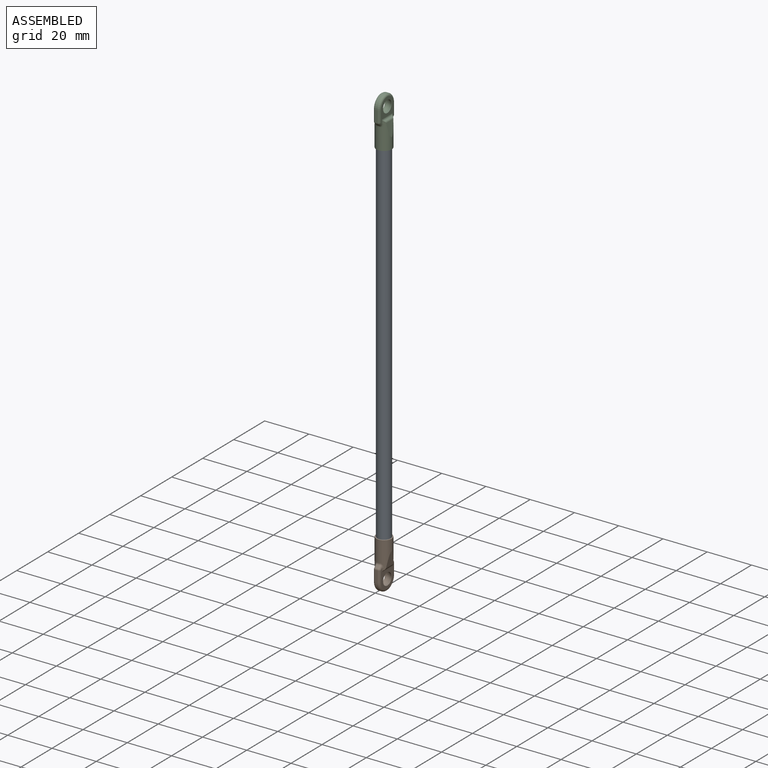
[diagram: assembled view]
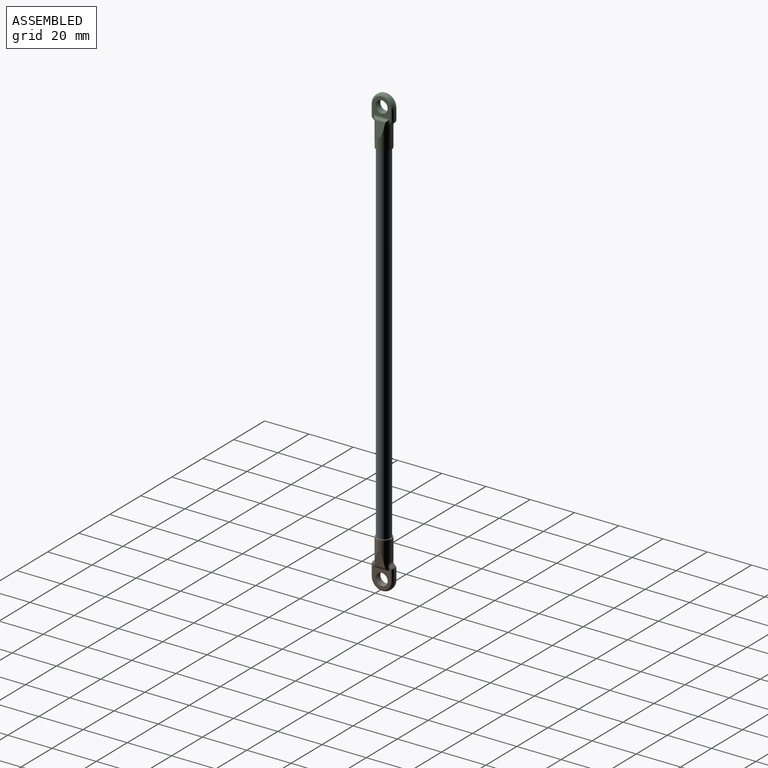
[diagram: assembled view, second angle]
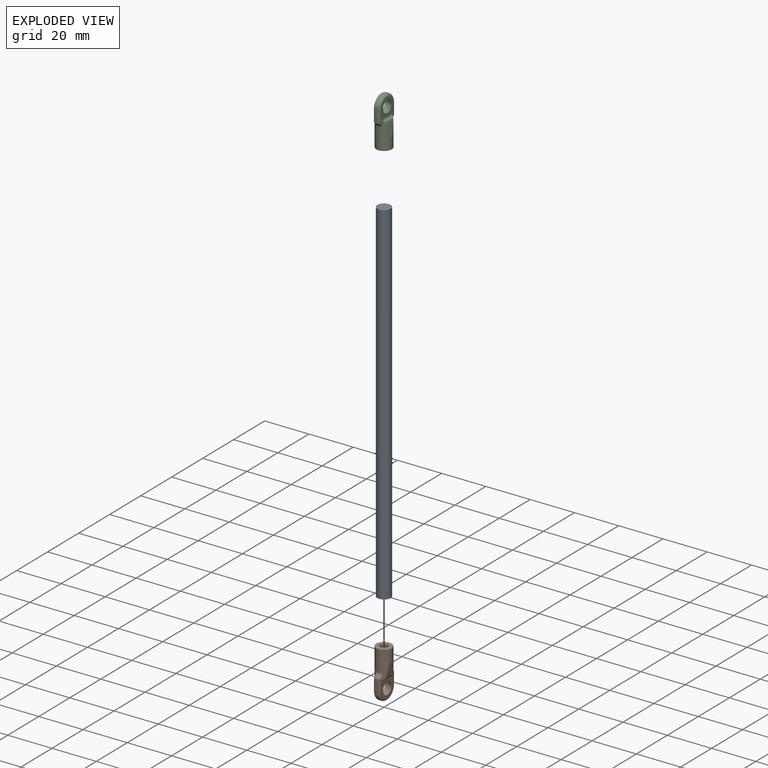
[diagram: exploded view]
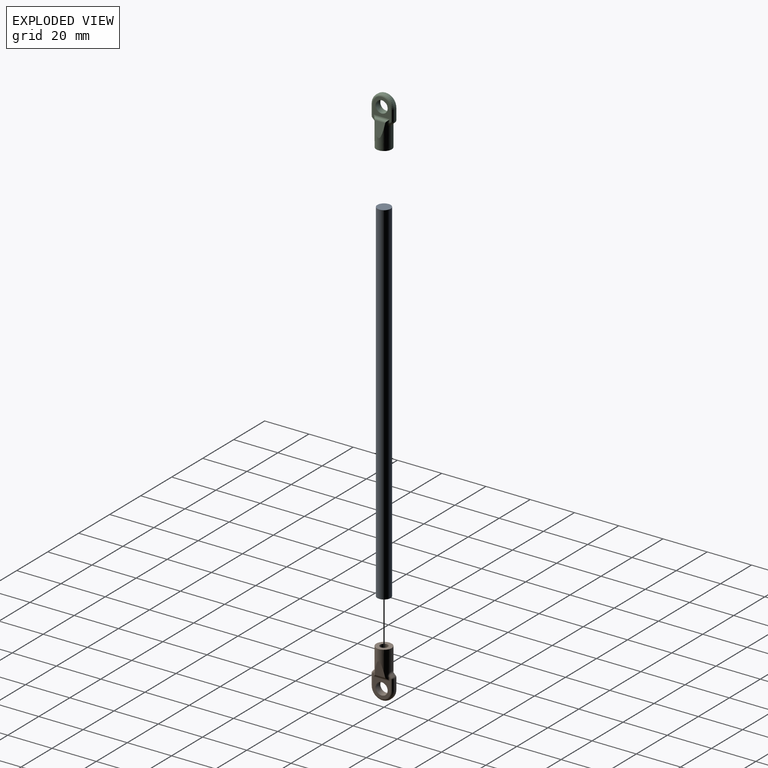
[diagram: exploded view, second angle]
ASSEMBLY  parts=3 mates=2
PART A: 3 faces, bbox 6x6x159 mm
  f0: cylinder r=3mm len=159mm, axis (0,0,-1), area 2997.1mm2, adj f1,f2
  f1: plane 6x6mm, normal (0,0,1), area 28.3mm2, adj f0
  f2: plane 6x6mm, normal (0,0,-1), area 28.3mm2, adj f0
PART B: 46 faces, bbox 12.5x22.3x10.8 mm
  f0: cylinder r=2.7mm len=5.4mm, axis (-0.93,-0.37,0), area 3.3mm2, adj f9,f15
  f1: cylinder r=2.7mm len=5.4mm, axis (-0.93,-0.37,0), area 3.3mm2, adj f8,f15
  f2: cylinder r=3.5mm len=13.89mm, axis (0.37,-0.93,0), area 195.8mm2, adj f10,f13,f14,f16,f17,f18,f19,f22
  f3: plane 5.1x2.79mm, normal (0,0,-1), area 5.1mm2, adj f4,f21,f30,f38
  f4: cylinder r=5mm len=10mm, axis (-0.93,-0.37,0), area 15.7mm2, adj f3,f5,f26,f41
  f5: plane 5.1x2.79mm, normal (0,0,1), area 5.1mm2, adj f4,f31,f39,f43
  f6: plane 1.28x1.24mm, normal (0.26,-0.66,0.71), area 1.3mm2, adj f32,f33,f39,f40
  f7: plane 1.28x1.24mm, normal (0.26,-0.66,-0.71), area 1.3mm2, adj f19,f20,f29,f30
  f8: plane 8.69x8mm, normal (0.93,0.37,0), area 34.9mm2, adj f1,f16,f18,f20,f21,f22,f26,f31
  f9: plane 8.69x8mm, normal (-0.93,-0.37,0), area 34.9mm2, adj f0,f23,f28,f29,f34,f38,f40,f41
  f10: plane 7x6.51mm, normal (0.37,-0.93,0), area 28.9mm2, adj f2,f11
  f11: cylinder r=1.75mm len=10.59mm, axis (0.37,-0.93,0), area 110mm2, adj f10,f12
  f12: plane 3.5x3.26mm, normal (0.37,-0.93,0), area 9.6mm2, adj f11
  f13: plane 5.58x4.7mm, normal (0.87,0.49,0), area 20.7mm2, adj f2,f44
  f14: plane 6.24x4.7mm, normal (-0.97,-0.23,0), area 20.7mm2, adj f2,f45
  f15: sphere r=3mm, area 49.3mm2, adj f0,f1
  f16: cylinder r=1mm len=1.41mm, axis (0.37,-0.93,0), area 0.9mm2, adj f2,f8,f17,f18
  f17: bspline ~3.08x1.33mm, area 1.9mm2, adj f2,f16,f19,f20
  f18: cylinder r=1mm len=7.48mm, axis (0,0,-1), area 7.2mm2, adj f2,f8,f16,f22,f44
  f19: bspline ~1.09x0.98mm, area 0.7mm2, adj f2,f7,f17,f24
  f20: cylinder r=1mm len=1.94mm, axis (0.26,-0.66,0.71), area 1.8mm2, adj f7,f8,f17,f25
  f21: cylinder r=1mm len=5.1mm, axis (0.37,-0.93,0), area 8mm2, adj f3,f8,f25,f26
  f22: cylinder r=1mm len=1.41mm, axis (0.37,-0.93,0), area 0.9mm2, adj f2,f8,f18,f27
  f23: cylinder r=1mm len=1.41mm, axis (0.37,-0.93,0), area 0.9mm2, adj f2,f9,f24,f28
  f24: bspline ~2.66x2.49mm, area 1.9mm2, adj f2,f19,f23,f29
  f25: sphere r=1mm, area 0.8mm2, adj f20,f21,f30
  f26: torus R=4mm, axis (0.93,0.37,0), area 22.9mm2, adj f4,f8,f21,f31
  f27: bspline ~3.38x1.24mm, area 1.9mm2, adj f2,f22,f32,f33
  f28: cylinder r=1mm len=7.48mm, axis (0,0,1), area 7.2mm2, adj f2,f9,f23,f34,f45
  f29: cylinder r=1mm len=1.7mm, axis (-0.26,0.66,-0.71), area 1.8mm2, adj f7,f9,f24,f35
  f30: cylinder r=1mm len=1.19mm, axis (0.93,0.37,0), area 0.8mm2, adj f3,f7,f25,f35
  f31: cylinder r=1mm len=5.1mm, axis (-0.37,0.93,0), area 8mm2, adj f5,f8,f26,f36
  f32: cylinder r=1mm len=1.94mm, axis (-0.26,0.66,0.71), area 1.8mm2, adj f6,f8,f27,f36
  f33: bspline ~1.09x0.98mm, area 0.7mm2, adj f2,f6,f27,f37
  f34: cylinder r=1mm len=1.41mm, axis (0.37,-0.93,0), area 0.9mm2, adj f2,f9,f28,f37
  f35: sphere r=1mm, area 0.8mm2, adj f29,f30,f38
  f36: sphere r=1mm, area 0.8mm2, adj f31,f32,f39
  f37: bspline ~2.68x2.19mm, area 1.9mm2, adj f2,f33,f34,f40
  f38: cylinder r=1mm len=5.1mm, axis (-0.37,0.93,0), area 8mm2, adj f3,f9,f35,f41
  f39: cylinder r=1mm len=1.19mm, axis (-0.93,-0.37,0), area 0.8mm2, adj f5,f6,f36,f42
  f40: cylinder r=1mm len=1.7mm, axis (0.26,-0.66,-0.71), area 1.8mm2, adj f6,f9,f37,f42
  f41: torus R=4mm, axis (0.93,0.37,0), area 22.9mm2, adj f4,f9,f38,f43
  f42: sphere r=1mm, area 0.8mm2, adj f39,f40,f43
  f43: cylinder r=1mm len=5.1mm, axis (0.37,-0.93,0), area 8mm2, adj f5,f9,f41,f42
  f44: cylinder r=1mm len=5.67mm, axis (0,0,-1), area 5mm2, adj f2,f13,f18
  f45: cylinder r=1mm len=5.67mm, axis (0,0,1), area 5mm2, adj f2,f14,f28
PART C: same geometry as B
PLACE A t=(0,0,-79.5)mm
PLACE B rot(axis=(-0.97,-0.18,-0.18),92deg) t=(0,0,-96.5)mm
PLACE C rot(axis=(0.97,0.18,-0.18),92deg) t=(0,0,96.5)mm
MATE fastened C.f2 <-> A.f0  axis (0,0,-1) through (0,0,79.5)mm
MATE fastened B.f2 <-> A.f0  axis (0,0,1) through (0,0,-79.5)mm
